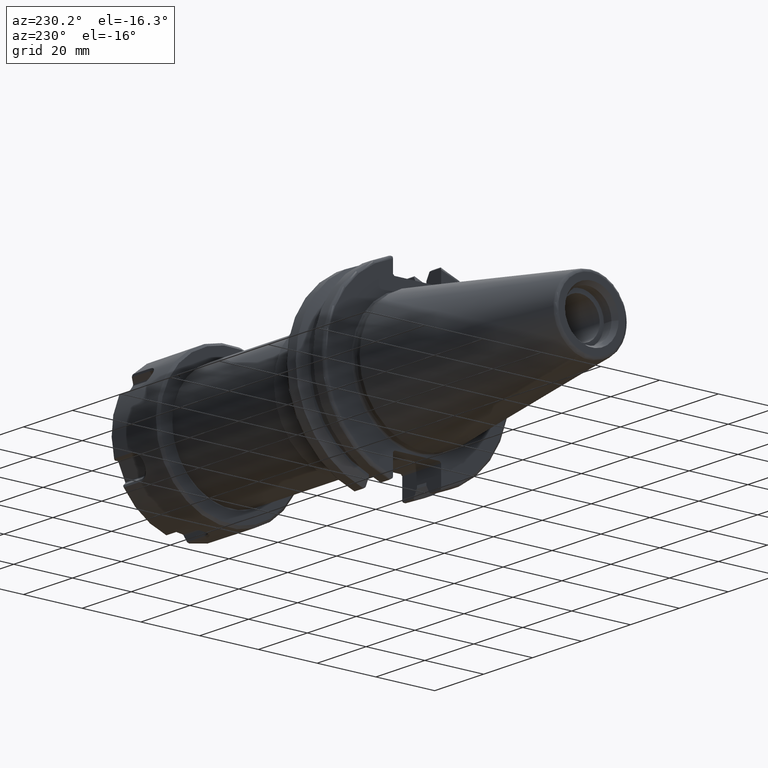
[diagram: clean part render]
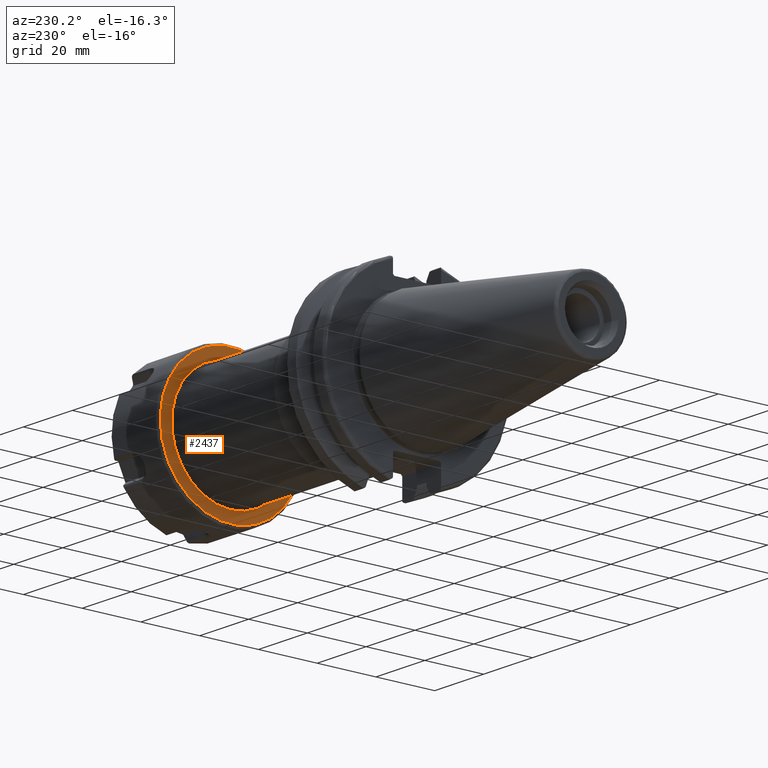
[diagram: same view with one face highlighted and labeled with its STEP entity id]
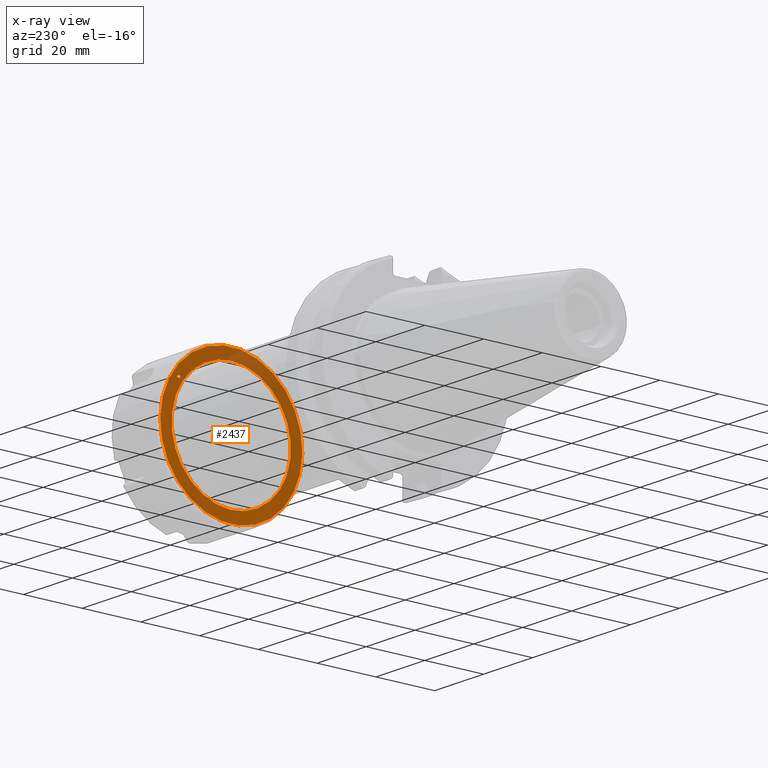
[diagram: x-ray of the same camera — body ghosted, the highlighted face saturated]
A machine part, auxiliary view. The second image highlights one B-rep face of the part: STEP entity #2437.
The next image is the same camera in x-ray: the body ghosted, the highlighted face saturated — about 35% of this face is hidden behind the body in this view.
In plain terms, the highlighted planar face has unit normal (1, -0, 0).
Its self-contained STEP definition (entity closure, byte-faithful):
#242=FACE_BOUND('',#556,.T.);
#243=FACE_BOUND('',#557,.T.);
#277=PLANE('',#2703);
#404=FACE_OUTER_BOUND('',#555,.T.);
#555=EDGE_LOOP('',(#1941));
#556=EDGE_LOOP('',(#1942));
#557=EDGE_LOOP('',(#1943));
#1000=CIRCLE('',#2704,24.2);
#1001=CIRCLE('',#2705,20.3);
#1002=CIRCLE('',#2706,0.5);
#1156=VERTEX_POINT('',#3927);
#1157=VERTEX_POINT('',#3929);
#1158=VERTEX_POINT('',#3931);
#1435=EDGE_CURVE('',#1156,#1156,#1000,.T.);
#1436=EDGE_CURVE('',#1157,#1157,#1001,.T.);
#1437=EDGE_CURVE('',#1158,#1158,#1002,.T.);
#1941=ORIENTED_EDGE('',*,*,#1435,.T.);
#1942=ORIENTED_EDGE('',*,*,#1436,.T.);
#1943=ORIENTED_EDGE('',*,*,#1437,.F.);
#2437=ADVANCED_FACE('',(#404,#242,#243),#277,.F.);
#2703=AXIS2_PLACEMENT_3D('',#3926,#3129,#3130);
#2704=AXIS2_PLACEMENT_3D('',#3928,#3131,#3132);
#2705=AXIS2_PLACEMENT_3D('',#3930,#3133,#3134);
#2706=AXIS2_PLACEMENT_3D('',#3932,#3135,#3136);
#3129=DIRECTION('center_axis',(1.,0.,0.));
#3130=DIRECTION('ref_axis',(0.,0.,-1.));
#3131=DIRECTION('center_axis',(-1.,0.,0.));
#3132=DIRECTION('ref_axis',(0.,0.,-1.));
#3133=DIRECTION('center_axis',(1.,0.,0.));
#3134=DIRECTION('ref_axis',(0.,1.,0.));
#3135=DIRECTION('center_axis',(-1.,0.,0.));
#3136=DIRECTION('ref_axis',(0.,1.,0.));
#3926=CARTESIAN_POINT('Origin',(-11.25,0.,0.));
#3927=CARTESIAN_POINT('',(-11.25,0.,24.2));
#3928=CARTESIAN_POINT('Origin',(-11.25,8.249911275027E-14,0.));
#3929=CARTESIAN_POINT('',(-11.25,-20.2996443079765,0.12017058557229));
#3930=CARTESIAN_POINT('Origin',(-11.25,0.,0.));
#3931=CARTESIAN_POINT('',(-11.25,21.5,6.12323399573677E-17));
#3932=CARTESIAN_POINT('Origin',(-11.25,22.,0.));